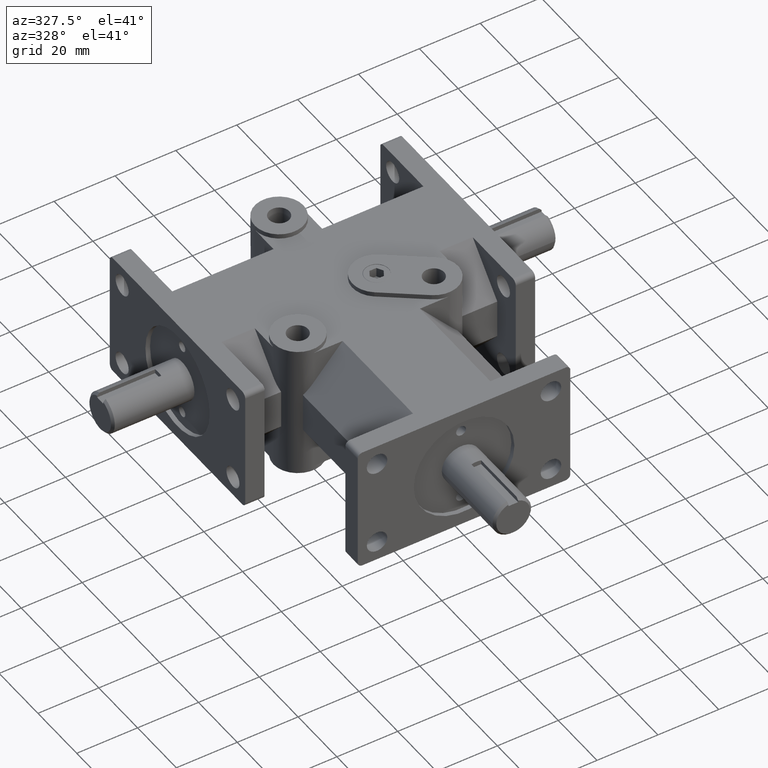
[diagram: clean part render]
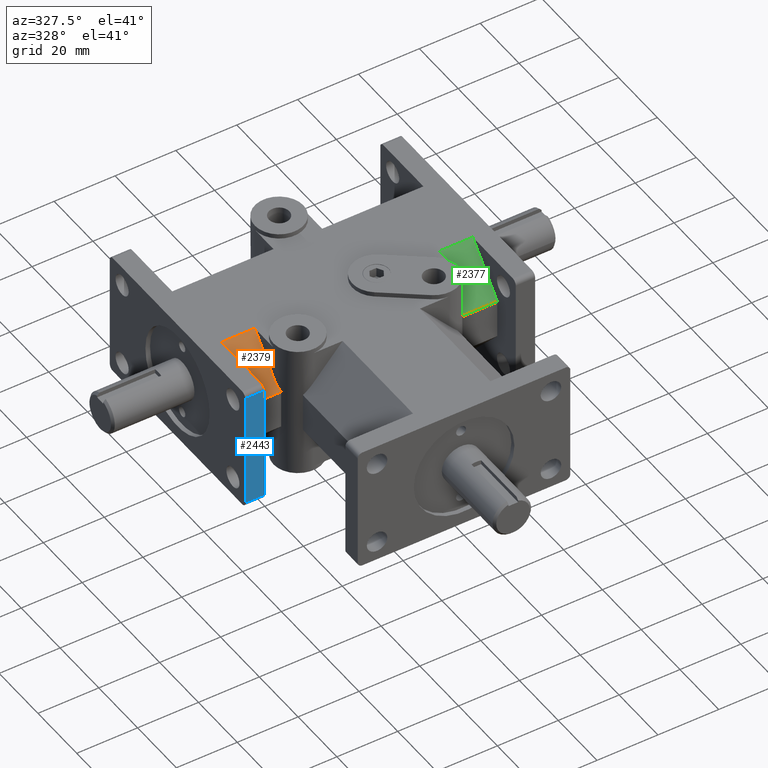
[diagram: same view with three faces highlighted in distinct colors, each labeled with its STEP entity id]
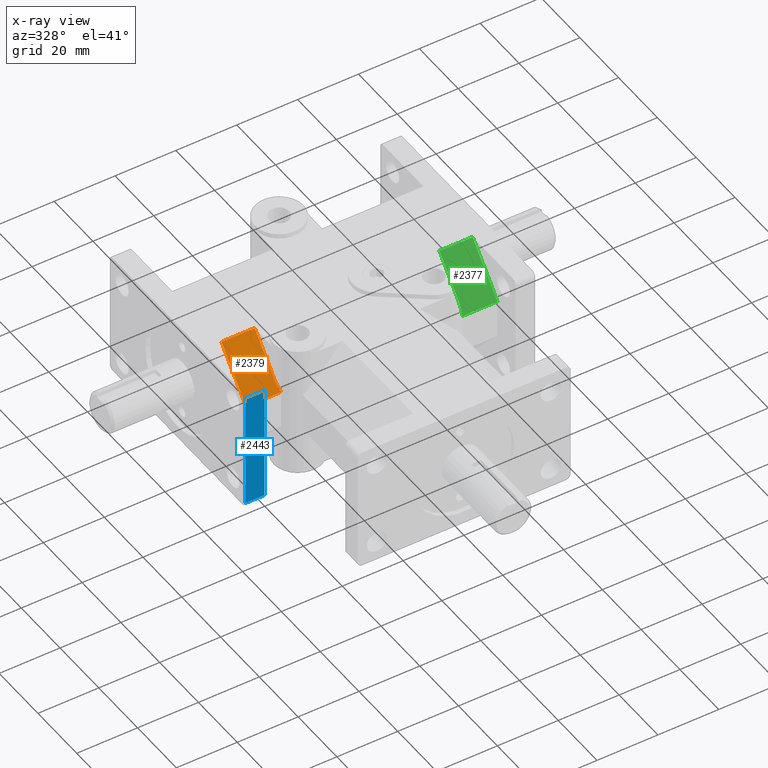
[diagram: x-ray of the same camera — body ghosted, the three highlighted faces saturated]
A machine part, auxiliary view with three faces highlighted in distinct colors.
The next image is the same camera in x-ray (body ghosted, the three faces saturated) — at least one of them is partly hidden behind the body in this view.
Their STEP definitions:

[orange] entity #2379 — the highlighted planar face has unit normal (0, 0.7489, -0.6627).
#221=FACE_OUTER_BOUND('',#356,.T.);
#356=EDGE_LOOP('',(#1625,#1626,#1627,#1628,#1629));
#534=ELLIPSE('',#2535,0.475316107974472,0.315);
#564=LINE('',#3561,#792);
#577=LINE('',#3595,#805);
#578=LINE('',#3597,#806);
#579=LINE('',#3599,#807);
#792=VECTOR('',#2808,1.);
#805=VECTOR('',#2831,1.);
#806=VECTOR('',#2832,1.);
#807=VECTOR('',#2833,1.);
#1021=VERTEX_POINT('',#3558);
#1022=VERTEX_POINT('',#3560);
#1038=VERTEX_POINT('',#3594);
#1039=VERTEX_POINT('',#3596);
#1040=VERTEX_POINT('',#3598);
#1255=EDGE_CURVE('',#1021,#1022,#564,.T.);
#1272=EDGE_CURVE('',#1022,#1038,#577,.T.);
#1273=EDGE_CURVE('',#1039,#1021,#578,.T.);
#1274=EDGE_CURVE('',#1040,#1039,#579,.T.);
#1275=EDGE_CURVE('',#1038,#1040,#534,.T.);
#1625=ORIENTED_EDGE('',*,*,#1272,.F.);
#1626=ORIENTED_EDGE('',*,*,#1255,.F.);
#1627=ORIENTED_EDGE('',*,*,#1273,.F.);
#1628=ORIENTED_EDGE('',*,*,#1274,.F.);
#1629=ORIENTED_EDGE('',*,*,#1275,.F.);
#2292=PLANE('',#2534);
#2379=ADVANCED_FACE('',(#221),#2292,.F.);
#2534=AXIS2_PLACEMENT_3D('',#3593,#2829,#2830);
#2535=AXIS2_PLACEMENT_3D('',#3600,#2834,#2835);
#2808=DIRECTION('',(1.,0.,0.));
#2829=DIRECTION('center_axis',(0.,0.748870055165724,-0.662716862978517));
#2830=DIRECTION('ref_axis',(0.,-0.662716862978517,-0.748870055165724));
#2831=DIRECTION('',(0.,-0.662716862978517,-0.748870055165724));
#2832=DIRECTION('',(0.,0.662716862978517,0.748870055165724));
#2833=DIRECTION('',(-1.,0.,0.));
#2834=DIRECTION('center_axis',(0.,-0.748870055165724,0.662716862978517));
#2835=DIRECTION('ref_axis',(0.,0.662716862978517,0.748870055165724));
#3558=CARTESIAN_POINT('',(-1.625,2.375,0.815));
#3560=CARTESIAN_POINT('',(-1.195,2.375,0.815));
#3561=CARTESIAN_POINT('',(0.8125,2.375,0.815));
#3593=CARTESIAN_POINT('Origin',(1.625,1.875,0.25));
#3594=CARTESIAN_POINT('',(-1.195,1.995,0.385600000000001));
#3595=CARTESIAN_POINT('',(-1.195,1.62218916070095,-0.0356762484079228));
#3596=CARTESIAN_POINT('',(-1.625,1.875,0.25));
#3597=CARTESIAN_POINT('',(-1.625,1.875,0.25));
#3598=CARTESIAN_POINT('',(-1.17124731758421,1.875,0.25));
#3599=CARTESIAN_POINT('',(0.,1.875,0.25));
#3600=CARTESIAN_POINT('Origin',(-0.88,1.995,0.3856));

[blue] entity #2443 — the highlighted planar face has unit normal (0, -1, 0).
#285=FACE_OUTER_BOUND('',#449,.T.);
#449=EDGE_LOOP('',(#1947,#1948,#1949,#1950));
#657=LINE('',#3857,#885);
#658=LINE('',#3862,#886);
#669=LINE('',#3914,#897);
#670=LINE('',#3920,#898);
#885=VECTOR('',#3083,1.);
#886=VECTOR('',#3088,1.);
#897=VECTOR('',#3149,1.);
#898=VECTOR('',#3156,1.);
#1133=VERTEX_POINT('',#3853);
#1134=VERTEX_POINT('',#3855);
#1135=VERTEX_POINT('',#3859);
#1136=VERTEX_POINT('',#3861);
#1400=EDGE_CURVE('',#1134,#1133,#657,.T.);
#1402=EDGE_CURVE('',#1135,#1136,#658,.T.);
#1430=EDGE_CURVE('',#1136,#1134,#669,.T.);
#1433=EDGE_CURVE('',#1135,#1133,#670,.T.);
#1947=ORIENTED_EDGE('',*,*,#1400,.F.);
#1948=ORIENTED_EDGE('',*,*,#1430,.F.);
#1949=ORIENTED_EDGE('',*,*,#1402,.F.);
#1950=ORIENTED_EDGE('',*,*,#1433,.T.);
#2333=PLANE('',#2680);
#2443=ADVANCED_FACE('',(#285),#2333,.T.);
#2680=AXIS2_PLACEMENT_3D('',#4007,#3244,#3245);
#3083=DIRECTION('',(-1.,0.,0.));
#3088=DIRECTION('',(1.,0.,0.));
#3149=DIRECTION('',(0.,0.,-1.));
#3156=DIRECTION('',(0.,0.,-1.));
#3244=DIRECTION('center_axis',(0.,-1.,0.));
#3245=DIRECTION('ref_axis',(0.,0.,1.));
#3853=CARTESIAN_POINT('',(-1.875,1.5,-0.755));
#3855=CARTESIAN_POINT('',(-1.625,1.5,-0.755));
#3857=CARTESIAN_POINT('',(-0.9375,1.5,-0.755));
#3859=CARTESIAN_POINT('',(-1.875,1.5,0.755));
#3861=CARTESIAN_POINT('',(-1.625,1.5,0.755));
#3862=CARTESIAN_POINT('',(-0.9375,1.5,0.755));
#3914=CARTESIAN_POINT('',(-1.625,1.5,0.));
#3920=CARTESIAN_POINT('',(-1.875,1.5,0.));
#4007=CARTESIAN_POINT('Origin',(-1.875,1.5,0.));

[green] entity #2377 — the highlighted planar face has unit normal (0, 0.7489, -0.6627).
#219=FACE_OUTER_BOUND('',#354,.T.);
#354=EDGE_LOOP('',(#1586,#1587,#1588,#1589,#1590));
#533=ELLIPSE('',#2527,0.475316107974472,0.315);
#545=LINE('',#3519,#773);
#546=LINE('',#3523,#774);
#547=LINE('',#3525,#775);
#548=LINE('',#3526,#776);
#773=VECTOR('',#2783,1.);
#774=VECTOR('',#2786,1.);
#775=VECTOR('',#2787,1.);
#776=VECTOR('',#2788,1.);
#1001=VERTEX_POINT('',#3517);
#1002=VERTEX_POINT('',#3518);
#1003=VERTEX_POINT('',#3520);
#1004=VERTEX_POINT('',#3522);
#1005=VERTEX_POINT('',#3524);
#1234=EDGE_CURVE('',#1001,#1002,#545,.T.);
#1235=EDGE_CURVE('',#1002,#1003,#533,.T.);
#1236=EDGE_CURVE('',#1004,#1003,#546,.T.);
#1237=EDGE_CURVE('',#1004,#1005,#547,.T.);
#1238=EDGE_CURVE('',#1001,#1005,#548,.T.);
#1586=ORIENTED_EDGE('',*,*,#1234,.T.);
#1587=ORIENTED_EDGE('',*,*,#1235,.T.);
#1588=ORIENTED_EDGE('',*,*,#1236,.F.);
#1589=ORIENTED_EDGE('',*,*,#1237,.T.);
#1590=ORIENTED_EDGE('',*,*,#1238,.F.);
#2290=PLANE('',#2526);
#2377=ADVANCED_FACE('',(#219),#2290,.F.);
#2526=AXIS2_PLACEMENT_3D('',#3516,#2781,#2782);
#2527=AXIS2_PLACEMENT_3D('',#3521,#2784,#2785);
#2781=DIRECTION('center_axis',(0.,0.748870055165724,-0.662716862978517));
#2782=DIRECTION('ref_axis',(0.,-0.662716862978517,-0.748870055165724));
#2783=DIRECTION('',(0.,-0.662716862978517,-0.748870055165724));
#2784=DIRECTION('center_axis',(0.,0.748870055165724,-0.662716862978517));
#2785=DIRECTION('ref_axis',(0.,0.662716862978517,0.748870055165724));
#2786=DIRECTION('',(-1.,0.,0.));
#2787=DIRECTION('',(0.,0.662716862978517,0.748870055165724));
#2788=DIRECTION('',(1.,0.,0.));
#3516=CARTESIAN_POINT('Origin',(-1.625,1.875,0.25));
#3517=CARTESIAN_POINT('',(1.195,2.375,0.815));
#3518=CARTESIAN_POINT('',(1.195,1.995,0.385600000000001));
#3519=CARTESIAN_POINT('',(1.195,1.62218916070095,-0.0356762484079228));
#3520=CARTESIAN_POINT('',(1.17124731758421,1.875,0.25));
#3521=CARTESIAN_POINT('Origin',(0.88,1.995,0.3856));
#3522=CARTESIAN_POINT('',(1.625,1.875,0.25));
#3523=CARTESIAN_POINT('',(-0.3125,1.875,0.25));
#3524=CARTESIAN_POINT('',(1.625,2.375,0.815));
#3525=CARTESIAN_POINT('',(1.625,1.875,0.25));
#3526=CARTESIAN_POINT('',(-0.8125,2.375,0.815));